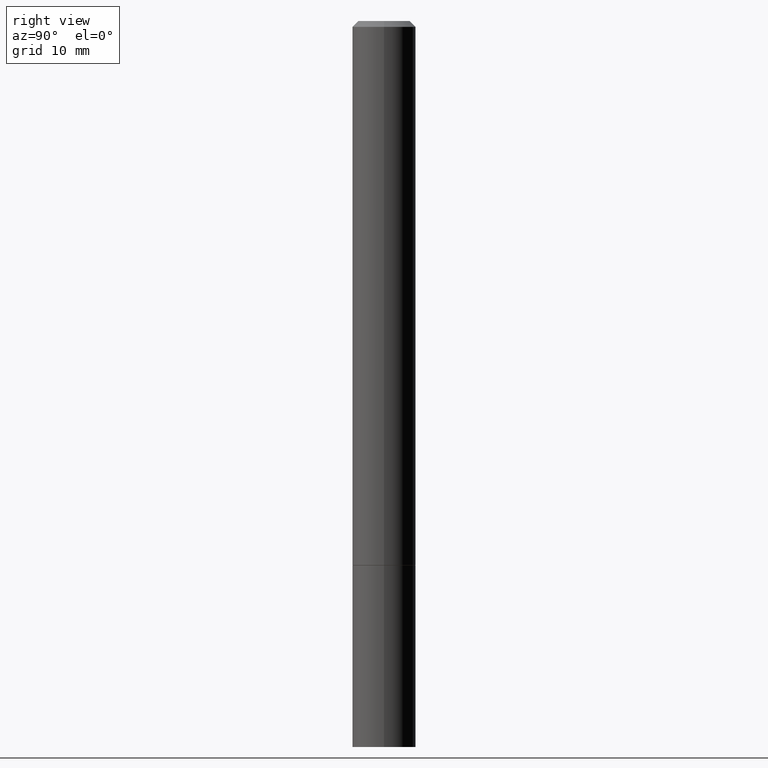
[diagram: clean part render]
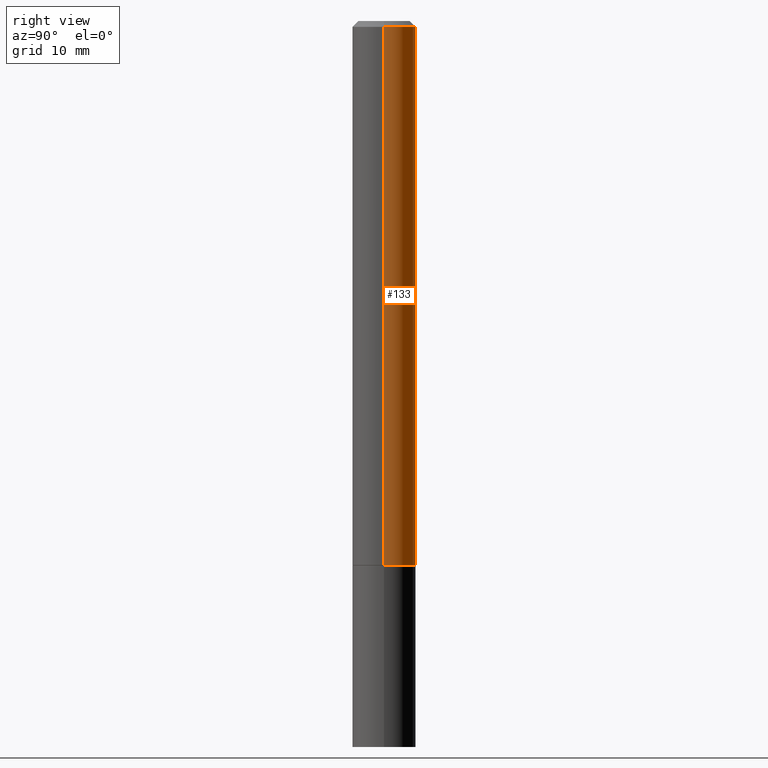
[diagram: same view with one face highlighted and labeled with its STEP entity id]
A machine part, right view. The second image highlights one B-rep face of the part: STEP entity #133.
In plain terms, the highlighted cylindrical surface (edge-blend (fillet) strip) has radius 2.7788 mm, axis along (-0, 0, 1).
Its self-contained STEP definition (entity closure, byte-faithful):
#15 = CARTESIAN_POINT ( 'NONE',  ( -0.1093999999999999972, -2.529099074962906760E-15, -1.874000000000000110 ) ) ;
#22 = CARTESIAN_POINT ( 'NONE',  ( 4.582808542790945516E-29, -6.543036028992054911E-15, -1.874000000000000110 ) ) ;
#38 = ORIENTED_EDGE ( 'NONE', *, *, #115, .F. ) ;
#43 = CARTESIAN_POINT ( 'NONE',  ( 0.000000000000000000, 0.000000000000000000, 0.000000000000000000 ) ) ;
#78 = EDGE_CURVE ( 'NONE', #86, #219, #305, .T. ) ;
#84 = VECTOR ( 'NONE', #295, 39.37007874015748143 ) ;
#86 = VERTEX_POINT ( 'NONE', #239 ) ;
#92 = CARTESIAN_POINT ( 'NONE',  ( 0.1093999999999999001, -7.639361169388768816E-16, 5.334537392720749004E-30 ) ) ;
#95 = DIRECTION ( 'NONE',  ( 1.000000000000000000, -6.982962677686266711E-15, 4.876176775795935793E-29 ) ) ;
#98 = EDGE_CURVE ( 'NONE', #149, #219, #135, .T. ) ;
#101 = CARTESIAN_POINT ( 'NONE',  ( -0.1093999999999997752, 6.941064901620129917E-16, -0.02000000000000002470 ) ) ;
#115 = EDGE_CURVE ( 'NONE', #154, #86, #323, .T. ) ;
#133 = ADVANCED_FACE ( 'NONE', ( #261 ), #257, .T. ) ;
#135 = LINE ( 'NONE', #250, #215 ) ;
#149 = VERTEX_POINT ( 'NONE', #15 ) ;
#154 = VERTEX_POINT ( 'NONE', #327 ) ;
#176 = CIRCLE ( 'NONE', #241, 0.1093999999999999972 ) ;
#215 = VECTOR ( 'NONE', #231, 39.37007874015748143 ) ;
#217 = DIRECTION ( 'NONE',  ( 1.000000000000000000, -6.982962677686269866E-15, 0.000000000000000000 ) ) ;
#219 = VERTEX_POINT ( 'NONE', #101 ) ;
#225 = DIRECTION ( 'NONE',  ( -2.445468806185136597E-29, 3.491481338843145583E-15, 1.000000000000000000 ) ) ;
#227 = ORIENTED_EDGE ( 'NONE', *, *, #379, .T. ) ;
#231 = DIRECTION ( 'NONE',  ( -2.445468806185136877E-29, 3.491481338843145188E-15, 1.000000000000000000 ) ) ;
#234 = AXIS2_PLACEMENT_3D ( 'NONE', #336, #359, #306 ) ;
#239 = CARTESIAN_POINT ( 'NONE',  ( 0.1093999999999997752, -8.203681077330669845E-16, -0.02000000000000002470 ) ) ;
#241 = AXIS2_PLACEMENT_3D ( 'NONE', #22, #386, #217 ) ;
#250 = CARTESIAN_POINT ( 'NONE',  ( -0.1093999999999999001, 7.773337529215488935E-16, -5.381314988738861811E-30 ) ) ;
#257 = CYLINDRICAL_SURFACE ( 'NONE', #290, 0.1093999999999999001 ) ;
#261 = FACE_OUTER_BOUND ( 'NONE', #334, .T. ) ;
#282 = ORIENTED_EDGE ( 'NONE', *, *, #78, .F. ) ;
#290 = AXIS2_PLACEMENT_3D ( 'NONE', #43, #225, #95 ) ;
#295 = DIRECTION ( 'NONE',  ( -2.445468806185136877E-29, 3.491481338843145188E-15, 1.000000000000000000 ) ) ;
#305 = CIRCLE ( 'NONE', #234, 0.1093999999999997752 ) ;
#306 = DIRECTION ( 'NONE',  ( 1.000000000000000000, -6.982962677686266711E-15, 0.000000000000000000 ) ) ;
#323 = LINE ( 'NONE', #92, #84 ) ;
#327 = CARTESIAN_POINT ( 'NONE',  ( 0.1093999999999999972, -7.306972145930932483E-15, -1.874000000000000110 ) ) ;
#334 = EDGE_LOOP ( 'NONE', ( #227, #340, #282, #38 ) ) ;
#336 = CARTESIAN_POINT ( 'NONE',  ( 4.890937612370279289E-31, -6.982962677686299005E-17, -0.02000000000000002470 ) ) ;
#340 = ORIENTED_EDGE ( 'NONE', *, *, #98, .T. ) ;
#359 = DIRECTION ( 'NONE',  ( -2.445468806185136597E-29, 3.491481338843145583E-15, 1.000000000000000000 ) ) ;
#379 = EDGE_CURVE ( 'NONE', #154, #149, #176, .T. ) ;
#386 = DIRECTION ( 'NONE',  ( -2.445468806185136597E-29, 3.491481338843145583E-15, 1.000000000000000000 ) ) ;